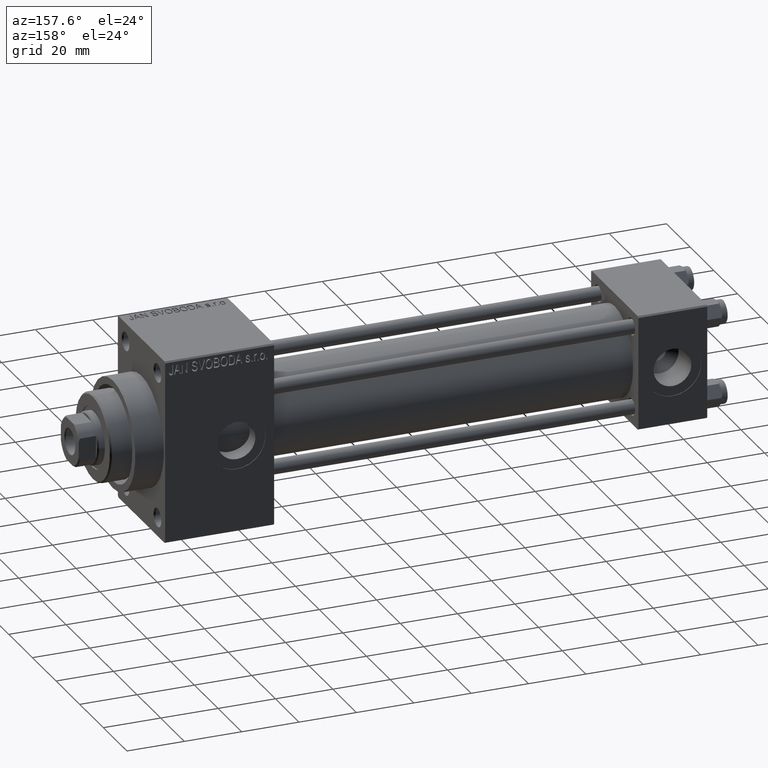
[diagram: clean part render]
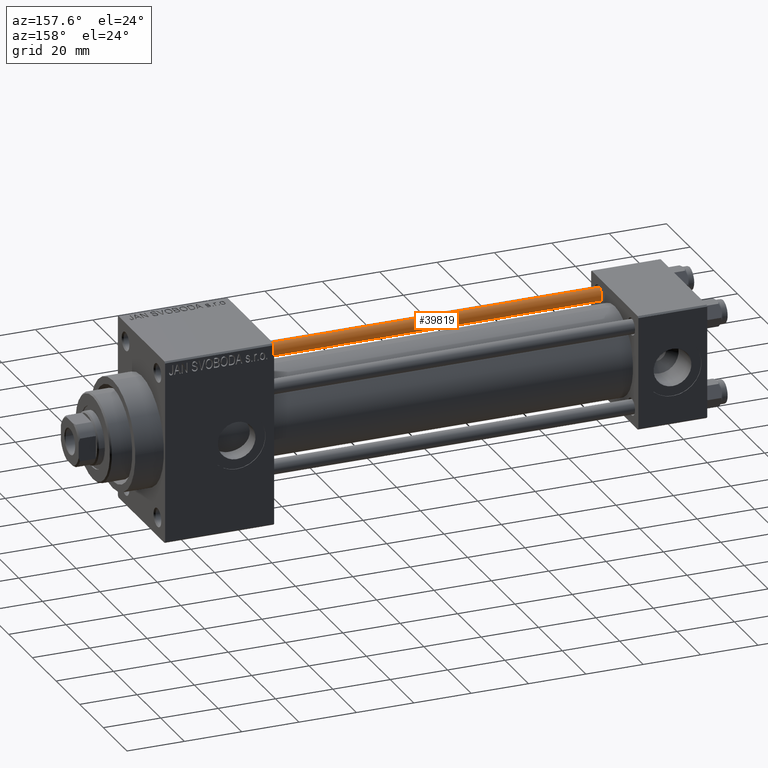
[diagram: same view with one face highlighted and labeled with its STEP entity id]
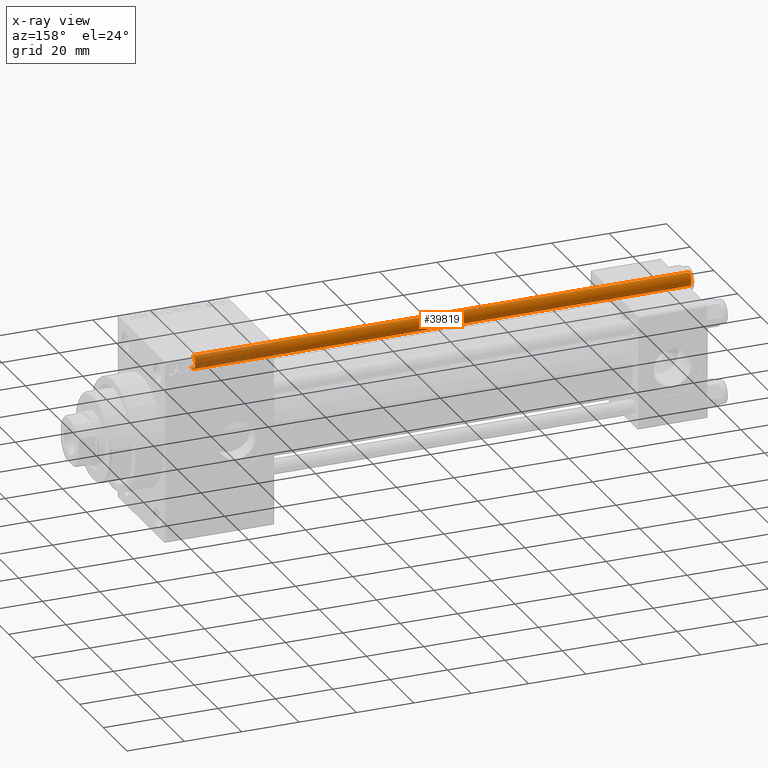
[diagram: x-ray of the same camera — body ghosted, the highlighted face saturated]
A machine part, auxiliary view. The second image highlights one B-rep face of the part: STEP entity #39819.
The next image is the same camera in x-ray: the body ghosted, the highlighted face saturated — about 16% of this face is hidden behind the body in this view.
In plain terms, the highlighted cylindrical surface (edge-blend (fillet) strip) has radius 2.5 mm, axis along (1, 0, 0).
Its self-contained STEP definition (entity closure, byte-faithful):
#203 = DIRECTION ( 'NONE',  ( 1.000000000000000000, 0.000000000000000000, 0.000000000000000000 ) ) ;
#885 = VERTEX_POINT ( 'NONE', #20281 ) ;
#3439 = DIRECTION ( 'NONE',  ( -0.000000000000000000, -0.000000000000000000, -1.000000000000000000 ) ) ;
#3678 = CARTESIAN_POINT ( 'NONE',  ( 0.000000000000000000, 0.000000000000000000, 174.0000000000000000 ) ) ;
#4049 = CARTESIAN_POINT ( 'NONE',  ( 2.500000000000000000, 3.061616997868383141E-16, 173.5000000000000000 ) ) ;
#4149 = DIRECTION ( 'NONE',  ( -0.000000000000000000, -0.000000000000000000, 1.000000000000000000 ) ) ;
#7118 = CARTESIAN_POINT ( 'NONE',  ( 0.000000000000000000, 0.000000000000000000, 0.5000000000000281997 ) ) ;
#11803 = DIRECTION ( 'NONE',  ( -0.000000000000000000, -0.000000000000000000, -1.000000000000000000 ) ) ;
#11996 = ORIENTED_EDGE ( 'NONE', *, *, #39814, .F. ) ;
#13653 = CARTESIAN_POINT ( 'NONE',  ( 0.000000000000000000, 0.000000000000000000, 173.5000000000000000 ) ) ;
#15490 = LINE ( 'NONE', #37703, #37872 ) ;
#15968 = EDGE_CURVE ( 'NONE', #885, #29731, #30557, .T. ) ;
#16453 = VECTOR ( 'NONE', #38416, 1000.000000000000000 ) ;
#18175 = AXIS2_PLACEMENT_3D ( 'NONE', #3678, #11803, #18699 ) ;
#18699 = DIRECTION ( 'NONE',  ( -1.000000000000000000, 0.000000000000000000, 0.000000000000000000 ) ) ;
#19881 = CARTESIAN_POINT ( 'NONE',  ( 2.500000000000000000, 3.061616997868383141E-16, 0.5000000000000281997 ) ) ;
#20281 = CARTESIAN_POINT ( 'NONE',  ( -2.500000000000000000, 0.000000000000000000, 173.5000000000000000 ) ) ;
#21113 = EDGE_CURVE ( 'NONE', #39244, #885, #33181, .T. ) ;
#21536 = DIRECTION ( 'NONE',  ( 0.000000000000000000, 0.000000000000000000, -1.000000000000000000 ) ) ;
#22966 = AXIS2_PLACEMENT_3D ( 'NONE', #7118, #4149, #203 ) ;
#23004 = CARTESIAN_POINT ( 'NONE',  ( -2.500000000000000000, 0.000000000000000000, 0.5000000000000281997 ) ) ;
#28652 = EDGE_LOOP ( 'NONE', ( #11996, #32770, #33951, #40921 ) ) ;
#29731 = VERTEX_POINT ( 'NONE', #23004 ) ;
#30557 = LINE ( 'NONE', #45588, #16453 ) ;
#32770 = ORIENTED_EDGE ( 'NONE', *, *, #21113, .T. ) ;
#33181 = CIRCLE ( 'NONE', #45781, 2.500000000000000000 ) ;
#33951 = ORIENTED_EDGE ( 'NONE', *, *, #15968, .T. ) ;
#34016 = FACE_OUTER_BOUND ( 'NONE', #28652, .T. ) ;
#36597 = DIRECTION ( 'NONE',  ( 1.000000000000000000, 0.000000000000000000, 0.000000000000000000 ) ) ;
#37703 = CARTESIAN_POINT ( 'NONE',  ( 2.500000000000000000, 3.061616997868383141E-16, 174.0000000000000000 ) ) ;
#37872 = VECTOR ( 'NONE', #3439, 1000.000000000000000 ) ;
#37997 = VERTEX_POINT ( 'NONE', #19881 ) ;
#38416 = DIRECTION ( 'NONE',  ( -0.000000000000000000, -0.000000000000000000, -1.000000000000000000 ) ) ;
#39244 = VERTEX_POINT ( 'NONE', #4049 ) ;
#39515 = CIRCLE ( 'NONE', #22966, 2.500000000000000000 ) ;
#39814 = EDGE_CURVE ( 'NONE', #39244, #37997, #15490, .T. ) ;
#39819 = ADVANCED_FACE ( 'NONE', ( #34016 ), #48800, .T. ) ;
#40921 = ORIENTED_EDGE ( 'NONE', *, *, #41953, .T. ) ;
#41953 = EDGE_CURVE ( 'NONE', #29731, #37997, #39515, .T. ) ;
#45588 = CARTESIAN_POINT ( 'NONE',  ( -2.500000000000000000, 0.000000000000000000, 174.0000000000000000 ) ) ;
#45781 = AXIS2_PLACEMENT_3D ( 'NONE', #13653, #21536, #36597 ) ;
#48800 = CYLINDRICAL_SURFACE ( 'NONE', #18175, 2.500000000000000000 ) ;